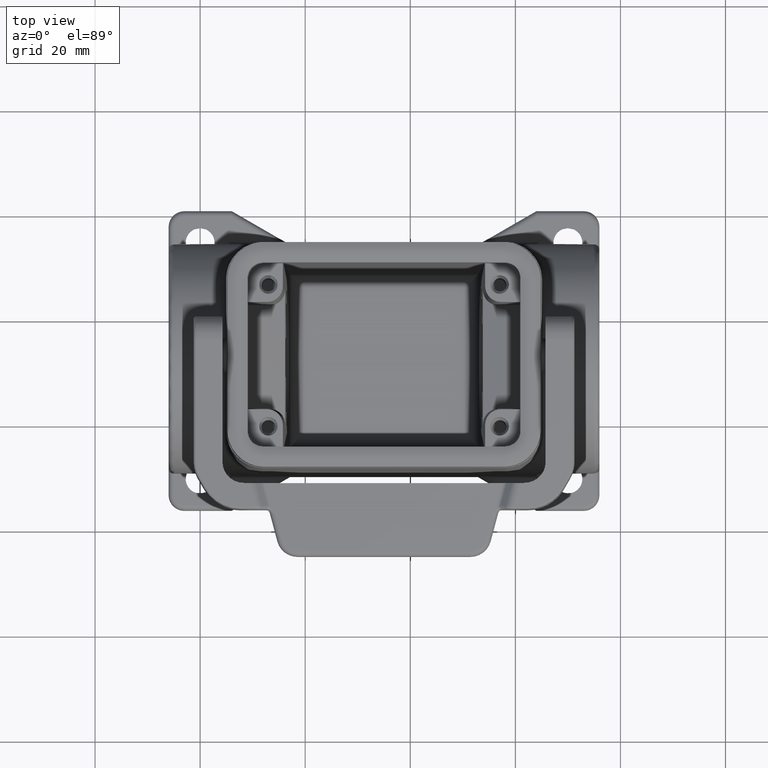
[diagram: clean part render]
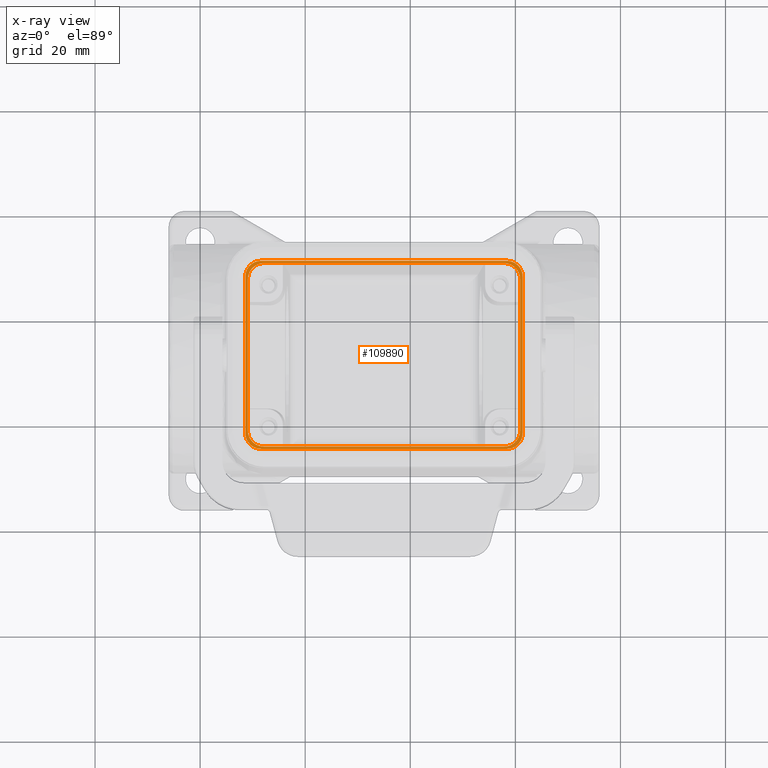
[diagram: x-ray — body ghosted, one internal face saturated and labeled with its STEP entity id]
A machine part, top view, then the same camera in x-ray: the body is ghosted and one INTERNAL B-rep face — a face not visible from any outside direction — is saturated and labeled: STEP entity #109890.
In plain terms, the highlighted planar face has unit normal (-0, 0, -1).
Its self-contained STEP definition (entity closure, byte-faithful):
#14130=CARTESIAN_POINT('',(11.2887545824693,15.3493638585248,
2.50000000000001));
#14140=VERTEX_POINT('',#14130);
#14170=CARTESIAN_POINT('',(0.,15.3493638585248,2.50000000000002));
#14180=DIRECTION('',(1.,-4.03761269811293E-18,-1.73472347597681E-16));
#14190=VECTOR('',#14180,1.);
#14200=LINE('',#14170,#14190);
#14210=CARTESIAN_POINT('',(58.0929574175307,15.3493638585248,
2.50000000000001));
#14220=VERTEX_POINT('',#14210);
#14230=EDGE_CURVE('',#14140,#14220,#14200,.T.);
#16220=CARTESIAN_POINT('',(8.28956685852484,48.1527544175307,
2.50000000000002));
#16230=VERTEX_POINT('',#16220);
#16260=CARTESIAN_POINT('',(8.28956685852483,0.,2.50000000000001));
#16270=DIRECTION('',(2.90708114264133E-18,1.,1.2490009027033E-16));
#16280=VECTOR('',#16270,1.);
#16290=LINE('',#16260,#16280);
#16300=CARTESIAN_POINT('',(8.28956685852483,18.3485515824693,
2.50000000000002));
#16310=VERTEX_POINT('',#16300);
#16320=EDGE_CURVE('',#16310,#16230,#16290,.T.);
#21420=CARTESIAN_POINT('',(58.0929574175307,51.1519421414752,
2.50000000000001));
#21430=VERTEX_POINT('',#21420);
#21590=CARTESIAN_POINT('',(61.0921451414752,48.1527544175307,
2.50000000000001));
#21600=VERTEX_POINT('',#21590);
#21630=CARTESIAN_POINT('',(58.0913326454293,48.1511296454293,
2.50000000000001));
#21640=DIRECTION('',(1.73472347597681E-16,-1.2490009027033E-16,1.));
#21650=DIRECTION('',(0.707106781186351,0.707106781186744,
-3.4345772533649E-17));
#21660=AXIS2_PLACEMENT_3D('',#21630,#21640,#21650);
#21670=ELLIPSE('',#21660,3.00162477216089,3.);
#21680=EDGE_CURVE('',#21600,#21430,#21670,.T.);
#21910=CARTESIAN_POINT('',(61.0921451414752,18.3485515824693,
2.50000000000001));
#21920=VERTEX_POINT('',#21910);
#21950=CARTESIAN_POINT('',(61.0921451414752,0.,2.5));
#21960=DIRECTION('',(-5.66847910519518E-20,1.,1.2490009027033E-16));
#21970=VECTOR('',#21960,1.);
#21980=LINE('',#21950,#21970);
#21990=EDGE_CURVE('',#21920,#21600,#21980,.T.);
#30960=CARTESIAN_POINT('',(11.2903793545707,48.1511296454293,
2.50000000000002));
#30970=DIRECTION('',(1.73472347597681E-16,-1.2490009027033E-16,1.));
#30980=DIRECTION('',(-0.707106781186344,0.707106781186751,
2.10981174135622E-16));
#30990=AXIS2_PLACEMENT_3D('',#30960,#30970,#30980);
#31000=ELLIPSE('',#30990,3.00162477216089,3.);
#31010=CARTESIAN_POINT('',(11.2887545824693,51.1519421414752,
2.50000000000002));
#31020=VERTEX_POINT('',#31010);
#31030=EDGE_CURVE('',#31020,#16230,#31000,.T.);
#31280=CARTESIAN_POINT('',(11.2903793545707,18.3501763545707,
2.50000000000002));
#31290=DIRECTION('',(1.73472347597681E-16,-1.2490009027033E-16,1.));
#31300=DIRECTION('',(0.707106781186348,0.707106781186748,
-3.4345772533648E-17));
#31310=AXIS2_PLACEMENT_3D('',#31280,#31290,#31300);
#31320=ELLIPSE('',#31310,3.00162477216089,3.);
#31330=EDGE_CURVE('',#16310,#14140,#31320,.T.);
#32940=CARTESIAN_POINT('',(58.0913326454293,18.3501763545707,
2.50000000000001));
#32950=DIRECTION('',(1.73472347597681E-16,-1.2490009027033E-16,1.));
#32960=DIRECTION('',(-0.707106781186351,0.707106781186744,
2.10981174135623E-16));
#32970=AXIS2_PLACEMENT_3D('',#32940,#32950,#32960);
#32980=ELLIPSE('',#32970,3.00162477216089,3.);
#32990=EDGE_CURVE('',#14220,#21920,#32980,.T.);
#51010=CARTESIAN_POINT('',(0.,51.1519421414752,2.50000000000002));
#51020=DIRECTION('',(-1.,-4.03761269811297E-18,1.73472347597681E-16));
#51030=VECTOR('',#51020,1.);
#51040=LINE('',#51010,#51030);
#51050=EDGE_CURVE('',#21430,#31020,#51040,.T.);
#107300=CARTESIAN_POINT('',(8.79085599999998,47.7011099145308,
2.50000000000002));
#107310=VERTEX_POINT('',#107300);
#107340=CARTESIAN_POINT('',(11.7913129841317,47.7001960158683,
2.50000000000002));
#107350=DIRECTION('',(1.73472347597681E-16,-1.2490009027033E-16,1.));
#107360=DIRECTION('',(-0.707106781186798,0.707106781186297,
2.10981174135644E-16));
#107370=AXIS2_PLACEMENT_3D('',#107340,#107350,#107360);
#107380=ELLIPSE('',#107370,3.00091389867315,3.);
#107390=CARTESIAN_POINT('',(11.7903990854691,50.700653,2.50000000000002)
);
#107400=VERTEX_POINT('',#107390);
#107410=EDGE_CURVE('',#107400,#107310,#107380,.T.);
#107670=CARTESIAN_POINT('',(-14.059144,50.700653,2.50000000000002));
#107680=DIRECTION('',(1.,1.2490009027033E-16,-1.73472347597681E-16));
#107690=VECTOR('',#107680,1.);
#107700=LINE('',#107670,#107690);
#107710=CARTESIAN_POINT('',(57.5913129145308,50.700653,2.50000000000001)
);
#107720=VERTEX_POINT('',#107710);
#107730=EDGE_CURVE('',#107400,#107720,#107700,.T.);
#107910=CARTESIAN_POINT('',(57.5903990158683,47.7001960158683,
2.50000000000001));
#107920=DIRECTION('',(1.73472347597681E-16,-1.2490009027033E-16,1.));
#107930=DIRECTION('',(-0.707106781186798,-0.707106781186297,
3.43457725337824E-17));
#107940=AXIS2_PLACEMENT_3D('',#107910,#107920,#107930);
#107950=ELLIPSE('',#107940,3.00091389867315,3.);
#107960=CARTESIAN_POINT('',(60.590856,47.7011099145308,2.50000000000001)
);
#107970=VERTEX_POINT('',#107960);
#107980=EDGE_CURVE('',#107970,#107720,#107950,.T.);
#108260=CARTESIAN_POINT('',(60.590856,-51.349347,2.5));
#108270=DIRECTION('',(1.2490009027033E-16,-1.,-1.2490009027033E-16));
#108280=VECTOR('',#108270,1.);
#108290=LINE('',#108260,#108280);
#108300=CARTESIAN_POINT('',(60.590856,18.8001960854692,2.50000000000001)
);
#108310=VERTEX_POINT('',#108300);
#108320=EDGE_CURVE('',#107970,#108310,#108290,.T.);
#108540=CARTESIAN_POINT('',(57.5903990158683,18.8011099841317,
2.50000000000001));
#108550=DIRECTION('',(1.73472347597681E-16,-1.2490009027033E-16,1.));
#108560=DIRECTION('',(-0.707106781186798,0.707106781186297,
2.10981174135644E-16));
#108570=AXIS2_PLACEMENT_3D('',#108540,#108550,#108560);
#108580=ELLIPSE('',#108570,3.00091389867315,3.);
#108590=CARTESIAN_POINT('',(57.5913129145308,15.800653,2.50000000000001)
);
#108600=VERTEX_POINT('',#108590);
#108610=EDGE_CURVE('',#108600,#108310,#108580,.T.);
#108860=CARTESIAN_POINT('',(-14.059144,15.800653,2.50000000000002));
#108870=DIRECTION('',(-1.,-1.2490009027033E-16,1.73472347597681E-16));
#108880=VECTOR('',#108870,1.);
#108890=LINE('',#108860,#108880);
#108900=CARTESIAN_POINT('',(11.7903990854692,15.800653,2.50000000000001)
);
#108910=VERTEX_POINT('',#108900);
#108920=EDGE_CURVE('',#108600,#108910,#108890,.T.);
#109120=CARTESIAN_POINT('',(11.7913129841317,18.8011099841317,
2.50000000000002));
#109130=DIRECTION('',(1.73472347597681E-16,-1.2490009027033E-16,1.));
#109140=DIRECTION('',(-0.707106781186798,-0.707106781186297,
3.43457725337824E-17));
#109150=AXIS2_PLACEMENT_3D('',#109120,#109130,#109140);
#109160=ELLIPSE('',#109150,3.00091389867315,3.);
#109170=CARTESIAN_POINT('',(8.79085599999998,18.8001960854692,
2.50000000000002));
#109180=VERTEX_POINT('',#109170);
#109190=EDGE_CURVE('',#109180,#108910,#109160,.T.);
#109460=CARTESIAN_POINT('',(8.79085599999999,-51.349347,2.50000000000001
));
#109470=DIRECTION('',(-1.2490009027033E-16,1.,1.2490009027033E-16));
#109480=VECTOR('',#109470,1.);
#109490=LINE('',#109460,#109480);
#109500=EDGE_CURVE('',#109180,#107310,#109490,.T.);
#109640=CARTESIAN_POINT('',(-14.059144,-51.349347,2.50000000000001));
#109650=DIRECTION('',(1.73472347597681E-16,-1.2490009027033E-16,1.));
#109660=DIRECTION('',(-1.2490009027033E-16,1.,1.2490009027033E-16));
#109670=AXIS2_PLACEMENT_3D('',#109640,#109650,#109660);
#109680=PLANE('',#109670);
#109690=ORIENTED_EDGE('',*,*,#21680,.T.);
#109700=ORIENTED_EDGE('',*,*,#21990,.T.);
#109710=ORIENTED_EDGE('',*,*,#32990,.T.);
#109720=ORIENTED_EDGE('',*,*,#14230,.T.);
#109730=ORIENTED_EDGE('',*,*,#31330,.T.);
#109740=ORIENTED_EDGE('',*,*,#16320,.F.);
#109750=ORIENTED_EDGE('',*,*,#31030,.T.);
#109760=ORIENTED_EDGE('',*,*,#51050,.T.);
#109770=EDGE_LOOP('',(#109760,#109750,#109740,#109730,#109720,#109710,
#109700,#109690));
#109780=FACE_OUTER_BOUND('',#109770,.T.);
#109790=ORIENTED_EDGE('',*,*,#107410,.F.);
#109800=ORIENTED_EDGE('',*,*,#109500,.T.);
#109810=ORIENTED_EDGE('',*,*,#109190,.F.);
#109820=ORIENTED_EDGE('',*,*,#108920,.T.);
#109830=ORIENTED_EDGE('',*,*,#108610,.F.);
#109840=ORIENTED_EDGE('',*,*,#108320,.T.);
#109850=ORIENTED_EDGE('',*,*,#107980,.F.);
#109860=ORIENTED_EDGE('',*,*,#107730,.T.);
#109870=EDGE_LOOP('',(#109860,#109850,#109840,#109830,#109820,#109810,
#109800,#109790));
#109880=FACE_BOUND('',#109870,.T.);
#109890=ADVANCED_FACE('',(#109780,#109880),#109680,.T.);